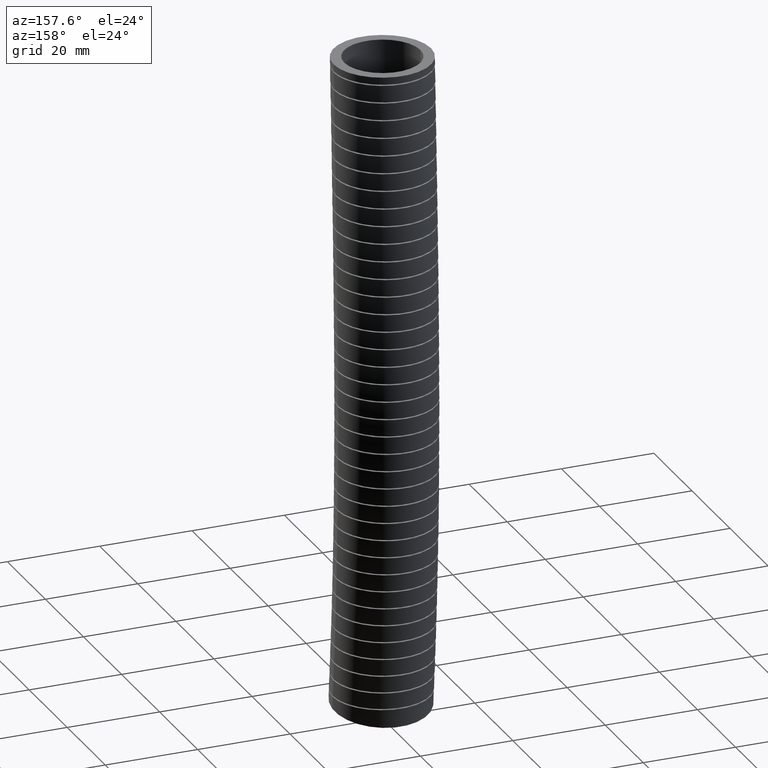
[diagram: clean part render]
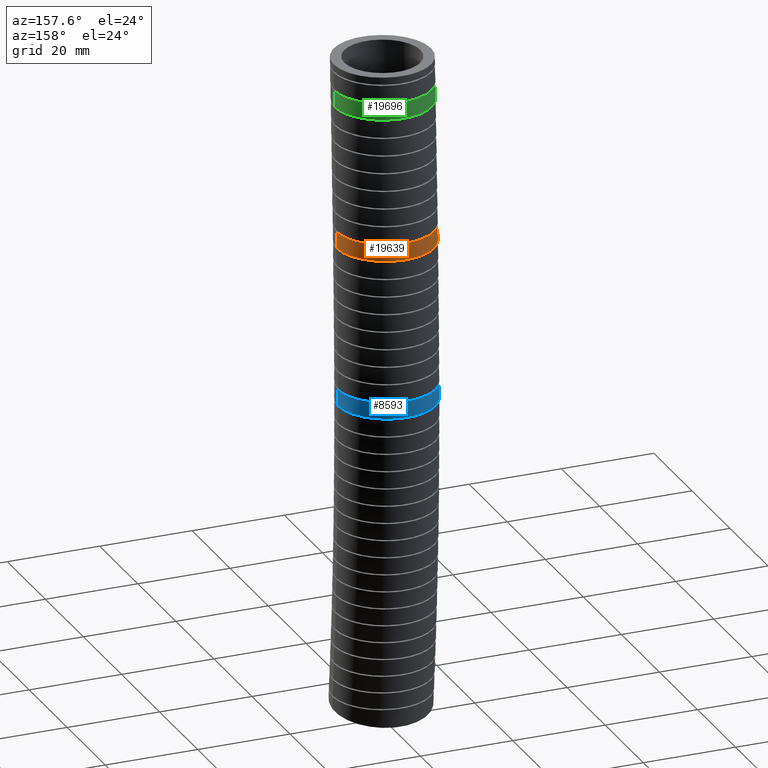
[diagram: same view with three faces highlighted in distinct colors, each labeled with its STEP entity id]
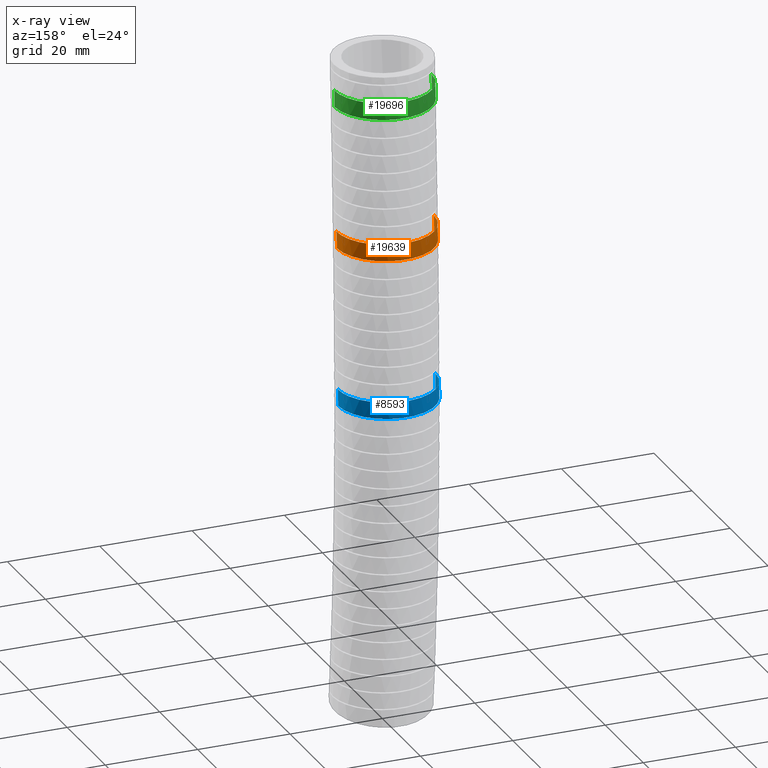
[diagram: x-ray of the same camera — body ghosted, the three highlighted faces saturated]
A machine part, auxiliary view with three faces highlighted in distinct colors.
The next image is the same camera in x-ray (body ghosted, the three faces saturated) — at least one of them is partly hidden behind the body in this view.
Their STEP definitions:

[orange] entity #19639 — the highlighted face is a freeform B-spline surface patch.
#127 = ORIENTED_EDGE ( 'NONE', *, *, #702, .F. ) ;
#128 = EDGE_LOOP ( 'NONE', ( #127, #15384, #15188, #19652 ) ) ;
#677 = VERTEX_POINT ( 'NONE', #9962 ) ;
#699 = VERTEX_POINT ( 'NONE', #10130 ) ;
#702 = EDGE_CURVE ( 'NONE', #706, #703, #10273, .T. ) ;
#703 = VERTEX_POINT ( 'NONE', #10271 ) ;
#706 = VERTEX_POINT ( 'NONE', #10300 ) ;
#707 = EDGE_CURVE ( 'NONE', #677, #699, #10296, .T. ) ;
#5275 = FACE_OUTER_BOUND ( 'NONE', #128, .T. ) ;
#5317 = CARTESIAN_POINT ( 'NONE',  ( 0.4150000000000000400, -0.7627651118616902700, -4.486822042548080700 ) ) ;
#5318 = CARTESIAN_POINT ( 'NONE',  ( 0.4150000000000000400, -0.7092540105308221500, -2.690209918970475100 ) ) ;
#5319 = CARTESIAN_POINT ( 'NONE',  ( 0.4150000000000000900, -0.7836011148550242600, -1.033763039210906500 ) ) ;
#5320 = CARTESIAN_POINT ( 'NONE',  ( 0.4150000000000000900, -0.8300000000000001800, 0.0000000000000000000 ) ) ;
#5321 = CARTESIAN_POINT ( 'NONE',  ( 0.4150000000000000400, -0.03000000000000001600, -5.569999999999998500 ) ) ;
#5323 = CARTESIAN_POINT ( 'NONE',  ( 0.4150000000000000900, -0.01243844818931303500, -5.380037381098891700 ) ) ;
#5324 = CARTESIAN_POINT ( 'NONE',  ( 0.4150000000000000900, 0.06281132015026588700, -4.566063580857106200 ) ) ;
#5325 = CARTESIAN_POINT ( 'NONE',  ( 0.4149999999999999200, 0.1218071073635319700, -2.711443563840852700 ) ) ;
#5326 = CARTESIAN_POINT ( 'NONE',  ( 0.4150000000000000900, 0.04680663936954134600, -1.041922460934817000 ) ) ;
#5327 = CARTESIAN_POINT ( 'NONE',  ( 0.4150000000000000900, 0.0000000000000000000, 0.0000000000000000000 ) ) ;
#5334 =( BOUNDED_SURFACE ( )  B_SPLINE_SURFACE ( 3, 3, ( 
 ( #5327, #5326, #5325, #5324, #5323, #5321 ),
 ( #5320, #5319, #5318, #5317, #5368, #5367 ),
 ( #5366, #5365, #5364, #5363, #5362, #5361 ),
 ( #5360, #5359, #5358, #5357, #5356, #5355 ),
 ( #5354, #5353, #5352, #5351, #5350, #5349 ),
 ( #5348, #5347, #5346, #5345, #5344, #5343 ),
 ( #5342, #5341, #5340, #5339, #5338, #5337 ) ),
 .UNSPECIFIED., .F., .F., .F. ) 
 B_SPLINE_SURFACE_WITH_KNOTS ( ( 4, 3, 4 ),
 ( 4, 1, 1, 4 ),
 ( 0.0000000000000000000, 0.5000000000000000000, 1.000000000000000000 ),
 ( 0.0000000000000000000, 0.5600000000000000500, 0.8973141982067990300, 1.000000000000000000 ),
 .UNSPECIFIED. ) 
 GEOMETRIC_REPRESENTATION_ITEM ( )  RATIONAL_B_SPLINE_SURFACE ( (
 ( 1.000000000000000000, 1.000000000000000000, 1.000000000000000000, 1.000000000000000000, 1.000000000000000000, 1.000000000000000000),
 ( 0.3333333333333333100, 0.3333333333333333100, 0.3333333333333333100, 0.3333333333333333100, 0.3333333333333332600, 0.3333333333333333100),
 ( 0.3333333333333333100, 0.3333333333333333100, 0.3333333333333333100, 0.3333333333333333100, 0.3333333333333332600, 0.3333333333333333100),
 ( 1.000000000000000000, 1.000000000000000000, 1.000000000000000000, 1.000000000000000000, 1.000000000000000000, 1.000000000000000000),
 ( 0.3333333333333333100, 0.3333333333333333100, 0.3333333333333333100, 0.3333333333333333100, 0.3333333333333332600, 0.3333333333333333100),
 ( 0.3333333333333333100, 0.3333333333333333100, 0.3333333333333333100, 0.3333333333333333100, 0.3333333333333332600, 0.3333333333333333100),
 ( 1.000000000000000000, 1.000000000000000000, 1.000000000000000000, 1.000000000000000000, 1.000000000000000000, 1.000000000000000000) ) ) 
 REPRESENTATION_ITEM ( '' )  SURFACE ( )  );
#5337 = CARTESIAN_POINT ( 'NONE',  ( 0.4150000000000000400, -0.03000000000000001600, -5.569999999999998500 ) ) ;
#5338 = CARTESIAN_POINT ( 'NONE',  ( 0.4150000000000000900, -0.01243844818931303500, -5.380037381098891700 ) ) ;
#5339 = CARTESIAN_POINT ( 'NONE',  ( 0.4150000000000000900, 0.06281132015026588700, -4.566063580857106200 ) ) ;
#5340 = CARTESIAN_POINT ( 'NONE',  ( 0.4149999999999999200, 0.1218071073635319700, -2.711443563840852700 ) ) ;
#5341 = CARTESIAN_POINT ( 'NONE',  ( 0.4150000000000000900, 0.04680663936954134600, -1.041922460934817000 ) ) ;
#5342 = CARTESIAN_POINT ( 'NONE',  ( 0.4150000000000000900, 0.0000000000000000000, 0.0000000000000000000 ) ) ;
#5343 = CARTESIAN_POINT ( 'NONE',  ( 0.4150000000000000400, 0.7922141346493595200, -5.683419208173947200 ) ) ;
#5344 = CARTESIAN_POINT ( 'NONE',  ( 0.4150000000000002000, 0.8104118928973711400, -5.486989566509566700 ) ) ;
#5345 = CARTESIAN_POINT ( 'NONE',  ( 0.4150000000000000400, 0.8883877521622221000, -4.645305119166129900 ) ) ;
#5346 = CARTESIAN_POINT ( 'NONE',  ( 0.4150000000000000400, 0.9528682252578860600, -2.732677208711230800 ) ) ;
#5347 = CARTESIAN_POINT ( 'NONE',  ( 0.4150000000000000900, 0.8772143935941071300, -1.050081882658727000 ) ) ;
#5348 = CARTESIAN_POINT ( 'NONE',  ( 0.4150000000000000900, 0.8300000000000001800, 0.0000000000000000000 ) ) ;
#5349 = CARTESIAN_POINT ( 'NONE',  ( -0.4149999999999999200, 0.7922141346493595200, -5.683419208173947200 ) ) ;
#5350 = CARTESIAN_POINT ( 'NONE',  ( -0.4150000000000000400, 0.8104118928973711400, -5.486989566509566700 ) ) ;
#5351 = CARTESIAN_POINT ( 'NONE',  ( -0.4149999999999999200, 0.8883877521622221000, -4.645305119166129900 ) ) ;
#5352 = CARTESIAN_POINT ( 'NONE',  ( -0.4149999999999999200, 0.9528682252578860600, -2.732677208711230800 ) ) ;
#5353 = CARTESIAN_POINT ( 'NONE',  ( -0.4149999999999999200, 0.8772143935941071300, -1.050081882658727000 ) ) ;
#5354 = CARTESIAN_POINT ( 'NONE',  ( -0.4150000000000000400, 0.8300000000000001800, 0.0000000000000000000 ) ) ;
#5355 = CARTESIAN_POINT ( 'NONE',  ( -0.4150000000000000400, -0.02999999999999996800, -5.569999999999998500 ) ) ;
#5356 = CARTESIAN_POINT ( 'NONE',  ( -0.4150000000000000900, -0.01243844818931298000, -5.380037381098891700 ) ) ;
#5357 = CARTESIAN_POINT ( 'NONE',  ( -0.4150000000000000900, 0.06281132015026594200, -4.566063580857106200 ) ) ;
#5358 = CARTESIAN_POINT ( 'NONE',  ( -0.4149999999999999200, 0.1218071073635320100, -2.711443563840852700 ) ) ;
#5359 = CARTESIAN_POINT ( 'NONE',  ( -0.4150000000000000900, 0.04680663936954139500, -1.041922460934817000 ) ) ;
#5360 = CARTESIAN_POINT ( 'NONE',  ( -0.4150000000000000900, 5.082284216461516900E-017, 0.0000000000000000000 ) ) ;
#5361 = CARTESIAN_POINT ( 'NONE',  ( -0.4150000000000000900, -0.8522141346493592500, -5.456580791826050700 ) ) ;
#5362 = CARTESIAN_POINT ( 'NONE',  ( -0.4150000000000002000, -0.8352887892759974800, -5.273085195688222100 ) ) ;
#5363 = CARTESIAN_POINT ( 'NONE',  ( -0.4150000000000000900, -0.7627651118616902700, -4.486822042548080700 ) ) ;
#5364 = CARTESIAN_POINT ( 'NONE',  ( -0.4150000000000000400, -0.7092540105308221500, -2.690209918970475100 ) ) ;
#5365 = CARTESIAN_POINT ( 'NONE',  ( -0.4150000000000000900, -0.7836011148550242600, -1.033763039210906500 ) ) ;
#5366 = CARTESIAN_POINT ( 'NONE',  ( -0.4150000000000000900, -0.8300000000000001800, 0.0000000000000000000 ) ) ;
#5367 = CARTESIAN_POINT ( 'NONE',  ( 0.4150000000000000400, -0.8522141346493592500, -5.456580791826050700 ) ) ;
#5368 = CARTESIAN_POINT ( 'NONE',  ( 0.4150000000000002000, -0.8352887892759974800, -5.273085195688222100 ) ) ;
#5631 = CARTESIAN_POINT ( 'NONE',  ( -0.2530480296697572600, 0.3930098631821943900, -1.558745690570982400 ) ) ;
#5632 = CARTESIAN_POINT ( 'NONE',  ( -0.2420183854522029200, 0.4012025832483722100, -1.558745690570981100 ) ) ;
#5633 = CARTESIAN_POINT ( 'NONE',  ( -0.2079953799857171800, 0.4239492426593599600, -1.558745690570980900 ) ) ;
#5634 = CARTESIAN_POINT ( 'NONE',  ( -0.1841409775019460200, 0.4366920484936032700, -1.558745690570980900 ) ) ;
#5635 = CARTESIAN_POINT ( 'NONE',  ( -0.1466424309258130600, 0.4522598473942761000, -1.558745690570981300 ) ) ;
#5636 = CARTESIAN_POINT ( 'NONE',  ( -0.1338547111090290000, 0.4568538169216500600, -1.558745690570982700 ) ) ;
#5637 = CARTESIAN_POINT ( 'NONE',  ( -0.1076844076745166300, 0.4648130424854946000, -1.558745690570982700 ) ) ;
#5638 = CARTESIAN_POINT ( 'NONE',  ( -0.09441587613805650600, 0.4681382022034298900, -1.558745690570981300 ) ) ;
#5639 = CARTESIAN_POINT ( 'NONE',  ( -0.05452458177354133100, 0.4760878549364622700, -1.558745690570981100 ) ) ;
#5640 = CARTESIAN_POINT ( 'NONE',  ( -0.02763124873732881000, 0.4787633537436413700, -1.558745690570982200 ) ) ;
#5641 = CARTESIAN_POINT ( 'NONE',  ( 0.01316132861774301100, 0.4788062237595002700, -1.558745690570982000 ) ) ;
#5642 = CARTESIAN_POINT ( 'NONE',  ( 0.02690503160815264900, 0.4781431039985693000, -1.558745690570981100 ) ) ;
#5643 = CARTESIAN_POINT ( 'NONE',  ( 0.05401535565871507700, 0.4754877283855035200, -1.558745690570981100 ) ) ;
#5644 = CARTESIAN_POINT ( 'NONE',  ( 0.06742087615956440800, 0.4735027468085092300, -1.558745690570981300 ) ) ;
#5645 = CARTESIAN_POINT ( 'NONE',  ( 0.1071986118086044000, 0.4656202789456790300, -1.558745690570981300 ) ) ;
#5646 = CARTESIAN_POINT ( 'NONE',  ( 0.1331363142419370300, 0.4578142147985411700, -1.558745690570981100 ) ) ;
#5647 = CARTESIAN_POINT ( 'NONE',  ( 0.1838011139505479600, 0.4368845569489011600, -1.558745690570981100 ) ) ;
#5648 = CARTESIAN_POINT ( 'NONE',  ( 0.2076944669633723800, 0.4241039006592391400, -1.558745690570980000 ) ) ;
#5649 = CARTESIAN_POINT ( 'NONE',  ( 0.2414360814785000100, 0.4016144037911879000, -1.558745690570980400 ) ) ;
#5650 = CARTESIAN_POINT ( 'NONE',  ( 0.2523326078176387800, 0.3935600190301745100, -1.558745690570981600 ) ) ;
#5651 = CARTESIAN_POINT ( 'NONE',  ( 0.2734084412545565400, 0.3763102430458227200, -1.558745690570982200 ) ) ;
#5652 = CARTESIAN_POINT ( 'NONE',  ( 0.2836137943189495100, 0.3670791682988576700, -1.558745690570980400 ) ) ;
#5653 = CARTESIAN_POINT ( 'NONE',  ( 0.3124862738769199600, 0.3382524385800725900, -1.558745690570981300 ) ) ;
#5654 = CARTESIAN_POINT ( 'NONE',  ( 0.3296487723175474700, 0.3173742912554553500, -1.558745690570980900 ) ) ;
#5655 = CARTESIAN_POINT ( 'NONE',  ( 0.3522929406101922300, 0.2835897846059329300, -1.558745690570980400 ) ) ;
#5656 = CARTESIAN_POINT ( 'NONE',  ( 0.3593417700886814600, 0.2718743705796292700, -1.558745690570980900 ) ) ;
#5657 = CARTESIAN_POINT ( 'NONE',  ( 0.3722644896321220500, 0.2477587841385151800, -1.558745690570981100 ) ) ;
#5658 = CARTESIAN_POINT ( 'NONE',  ( 0.3780806080155281200, 0.2354763999878228500, -1.558745690570982400 ) ) ;
#5659 = CARTESIAN_POINT ( 'NONE',  ( 0.3936540415104261000, 0.1979766384407226600, -1.558745690570982400 ) ) ;
#5660 = CARTESIAN_POINT ( 'NONE',  ( 0.4015541706315150500, 0.1721128252505605700, -1.558745690570982700 ) ) ;
#5661 = CARTESIAN_POINT ( 'NONE',  ( 0.4095936908385555100, 0.1319907139541683400, -1.558745690570982200 ) ) ;
#5662 = CARTESIAN_POINT ( 'NONE',  ( 0.4116257368884618800, 0.1183970458522912200, -1.558745690570980200 ) ) ;
#5663 = CARTESIAN_POINT ( 'NONE',  ( 0.4143224466391948700, 0.09120927082526174300, -1.558745690570980400 ) ) ;
#5664 = CARTESIAN_POINT ( 'NONE',  ( 0.4150000000000000900, 0.07755948595522385600, -1.558745690378915900 ) ) ;
#5665 = CARTESIAN_POINT ( 'NONE',  ( 0.4150000000000000900, 0.06385324110268690600, -1.558745690378915900 ) ) ;
#5666 = B_SPLINE_CURVE_WITH_KNOTS ( 'NONE', 3,
 ( #5665, #5664, #5663, #5662, #5661, #5660, #5659, #5658, #5657, #5656, #5655, #5654, #5653, #5652, #5651, #5650, #5649, #5648, #5647, #5646, #5645, #5644, #5643, #5642, #5641, #5640, #5639, #5638, #5637, #5636, #5635, #5634, #5633, #5632, #5631, #5709, #5708, #5707, #5706, #5705, #5704, #5703, #5702, #5701, #5700, #5699, #5698, #5697, #5696 ),
 .UNSPECIFIED., .F., .F.,
 ( 4, 2, 2, 2, 2, 2, 2, 2, 2, 2, 2, 2, 2, 2, 2, 2, 2, 2, 1, 2, 2, 2, 2, 2, 4 ),
 ( 0.0000000000000000000, 0.001040808548537697300, 0.002081617097075394600, 0.004163234194150791000, 0.005204042742688487800, 0.006244851291226185600, 0.008326468388301581900, 0.009367276936839280500, 0.01040808548537697600, 0.01248970258245237300, 0.01457131967952776800, 0.01561212822806546500, 0.01665293677660316400, 0.01873455387367856100, 0.01977536242221625600, 0.02081617097075395100, 0.02289778806782934500, 0.02393859661636704400, 0.02497940516490474200, 0.02602021371344244100, 0.02706102226198013600, 0.02914263935905553300, 0.03018344790759323200, 0.03122425645613092700, 0.03330587355320632800 ),
 .UNSPECIFIED. ) ;
#5696 = CARTESIAN_POINT ( 'NONE',  ( -0.4150000000000000900, 0.06385324111537978000, -1.558745690570981600 ) ) ;
#5697 = CARTESIAN_POINT ( 'NONE',  ( -0.4150000000000000400, 0.09103404013532480400, -1.558745690570981300 ) ) ;
#5698 = CARTESIAN_POINT ( 'NONE',  ( -0.4123543557392044800, 0.1179288235226030600, -1.558745690570981100 ) ) ;
#5699 = CARTESIAN_POINT ( 'NONE',  ( -0.4044404088867445400, 0.1578444601202371500, -1.558745690570982000 ) ) ;
#5700 = CARTESIAN_POINT ( 'NONE',  ( -0.4011218134241089600, 0.1711363851670459100, -1.558745690570982400 ) ) ;
#5701 = CARTESIAN_POINT ( 'NONE',  ( -0.3931921010271234900, 0.1972941505919999200, -1.558745690570982400 ) ) ;
#5702 = CARTESIAN_POINT ( 'NONE',  ( -0.3886123362093592000, 0.2100797063785178600, -1.558745690570981100 ) ) ;
#5703 = CARTESIAN_POINT ( 'NONE',  ( -0.3730830397548043400, 0.2475824976204930900, -1.558745690570981300 ) ) ;
#5704 = CARTESIAN_POINT ( 'NONE',  ( -0.3603605524434012100, 0.2714539884862736100, -1.558745690570982900 ) ) ;
#5705 = CARTESIAN_POINT ( 'NONE',  ( -0.3376260681695171800, 0.3055197233466000500, -1.558745690570982400 ) ) ;
#5706 = CARTESIAN_POINT ( 'NONE',  ( -0.3294499711217612200, 0.3165447876002900300, -1.558745690570982200 ) ) ;
#5707 = CARTESIAN_POINT ( 'NONE',  ( -0.3122300736977493600, 0.3375308369935001200, -1.558745690570982700 ) ) ;
#5708 = CARTESIAN_POINT ( 'NONE',  ( -0.2940636023942566100, 0.3575757523175059900, -1.558745690570981100 ) ) ;
#5709 = CARTESIAN_POINT ( 'NONE',  ( -0.2740297446776663900, 0.3757640128025892000, -1.558745690570982200 ) ) ;
#9962 = CARTESIAN_POINT ( 'NONE',  ( 0.4150000000000000900, 0.05908527017593824500, -1.418832748670765700 ) ) ;
#10130 = CARTESIAN_POINT ( 'NONE',  ( 0.4150000000000000900, 0.06385324110268690600, -1.558745690378915900 ) ) ;
#10265 = CARTESIAN_POINT ( 'NONE',  ( -0.4150000000000000900, 0.06385324111537978000, -1.558745690570981600 ) ) ;
#10266 = CARTESIAN_POINT ( 'NONE',  ( -0.4149999999999999200, 0.06231226543439481700, -1.512110062923618200 ) ) ;
#10267 = CARTESIAN_POINT ( 'NONE',  ( -0.4150000000000000400, 0.06072145016293117200, -1.465472353379295000 ) ) ;
#10268 = CARTESIAN_POINT ( 'NONE',  ( -0.4150000000000000900, 0.05908527018941434800, -1.418832748862834900 ) ) ;
#10271 = CARTESIAN_POINT ( 'NONE',  ( -0.4150000000000000900, 0.06385324111537978000, -1.558745690570981600 ) ) ;
#10273 = B_SPLINE_CURVE_WITH_KNOTS ( 'NONE', 3,
 ( #10268, #10267, #10266, #10265 ),
 .UNSPECIFIED., .F., .F.,
 ( 4, 4 ),
 ( 0.2542272988699750300, 0.2793049196998993500 ),
 .UNSPECIFIED. ) ;
#10296 = B_SPLINE_CURVE_WITH_KNOTS ( 'NONE', 3,
 ( #10350, #10349, #10348, #10347 ),
 .UNSPECIFIED., .F., .F.,
 ( 4, 4 ),
 ( 0.2542272988355082600, 0.2793049196654349700 ),
 .UNSPECIFIED. ) ;
#10300 = CARTESIAN_POINT ( 'NONE',  ( -0.4150000000000000900, 0.05908527018941434800, -1.418832748862834900 ) ) ;
#10347 = CARTESIAN_POINT ( 'NONE',  ( 0.4150000000000000900, 0.06385324110268690600, -1.558745690378915900 ) ) ;
#10348 = CARTESIAN_POINT ( 'NONE',  ( 0.4150000000000000900, 0.06231226542790428000, -1.512110062731332200 ) ) ;
#10349 = CARTESIAN_POINT ( 'NONE',  ( 0.4150000000000000900, 0.06072145015630964200, -1.465472353186999300 ) ) ;
#10350 = CARTESIAN_POINT ( 'NONE',  ( 0.4150000000000000900, 0.05908527017593824500, -1.418832748670765700 ) ) ;
#15188 = ORIENTED_EDGE ( 'NONE', *, *, #707, .T. ) ;
#15226 = EDGE_CURVE ( 'NONE', #706, #677, #15950, .T. ) ;
#15384 = ORIENTED_EDGE ( 'NONE', *, *, #15226, .T. ) ;
#15917 = CARTESIAN_POINT ( 'NONE',  ( 0.2075406508687024100, 0.4186845661983060700, -1.418832748862834300 ) ) ;
#15918 = CARTESIAN_POINT ( 'NONE',  ( 0.1834488923573311100, 0.4315491679798713100, -1.418832748862834100 ) ) ;
#15919 = CARTESIAN_POINT ( 'NONE',  ( 0.1711728334796850900, 0.4373422404948635900, -1.418832748862833800 ) ) ;
#15920 = CARTESIAN_POINT ( 'NONE',  ( 0.1336734067975987000, 0.4528573395961156800, -1.418832748862833600 ) ) ;
#15921 = CARTESIAN_POINT ( 'NONE',  ( 0.1077852262346627500, 0.4607331246419718000, -1.418832748862834900 ) ) ;
#15922 = CARTESIAN_POINT ( 'NONE',  ( 0.06757918351784343600, 0.4687317209484308000, -1.418832748862834900 ) ) ;
#15923 = CARTESIAN_POINT ( 'NONE',  ( 0.05401970958160927400, 0.4707356533903930800, -1.418832748862834500 ) ) ;
#15924 = CARTESIAN_POINT ( 'NONE',  ( 0.02701520612460219300, 0.4733845586806245100, -1.418832748862834500 ) ) ;
#15925 = CARTESIAN_POINT ( 'NONE',  ( -3.141919472672733100E-007, 0.4747009195132181300, -1.418832748862831600 ) ) ;
#15926 = CARTESIAN_POINT ( 'NONE',  ( -0.02703760670074020800, 0.4733838244153256200, -1.418832748862834100 ) ) ;
#15927 = CARTESIAN_POINT ( 'NONE',  ( -0.05408596979859525000, 0.4707276860048825200, -1.418832748862834100 ) ) ;
#15928 = CARTESIAN_POINT ( 'NONE',  ( -0.06769021407858082100, 0.4687123141075830700, -1.418832748862832700 ) ) ;
#15929 = CARTESIAN_POINT ( 'NONE',  ( -0.1077994571987883600, 0.4607249065735786700, -1.418832748862832700 ) ) ;
#15930 = CARTESIAN_POINT ( 'NONE',  ( -0.1336714596217841200, 0.4528597067144449800, -1.418832748862834500 ) ) ;
#15931 = CARTESIAN_POINT ( 'NONE',  ( -0.1837154728501669000, 0.4321512572490561200, -1.418832748862834900 ) ) ;
#15932 = CARTESIAN_POINT ( 'NONE',  ( -0.2080895273361324500, 0.4191293959363949800, -1.418832748862834900 ) ) ;
#15933 = CARTESIAN_POINT ( 'NONE',  ( -0.2531615865203227800, 0.3890041836772727400, -1.418832748862834500 ) ) ;
#15934 = CARTESIAN_POINT ( 'NONE',  ( -0.2740667689532872400, 0.3718678634584195500, -1.418832748862833800 ) ) ;
#15935 = CARTESIAN_POINT ( 'NONE',  ( -0.3029482121341942100, 0.3430145893553107100, -1.418832748862834100 ) ) ;
#15936 = CARTESIAN_POINT ( 'NONE',  ( -0.3121937266000017800, 0.3328183542882893800, -1.418832748862834500 ) ) ;
#15937 = CARTESIAN_POINT ( 'NONE',  ( -0.3294617959961215800, 0.3117746700324480200, -1.418832748862834300 ) ) ;
#15938 = CARTESIAN_POINT ( 'NONE',  ( -0.3375282819760183100, 0.3008914116068094900, -1.418832748862835600 ) ) ;
#15939 = CARTESIAN_POINT ( 'NONE',  ( -0.3600603646152695200, 0.2671798479957746600, -1.418832748862835400 ) ) ;
#15940 = CARTESIAN_POINT ( 'NONE',  ( -0.3728936815753253800, 0.2432551594121166200, -1.418832748862835200 ) ) ;
#15941 = CARTESIAN_POINT ( 'NONE',  ( -0.3938679471605016100, 0.1926503495636997500, -1.418832748862835200 ) ) ;
#15942 = CARTESIAN_POINT ( 'NONE',  ( -0.4017049477336311900, 0.1667283083353255900, -1.418832748862836100 ) ) ;
#15943 = CARTESIAN_POINT ( 'NONE',  ( -0.4096353499487643300, 0.1269508873472916200, -1.418832748862835600 ) ) ;
#15944 = CARTESIAN_POINT ( 'NONE',  ( -0.4116365967719843900, 0.1135415872693664600, -1.418832748862834900 ) ) ;
#15945 = CARTESIAN_POINT ( 'NONE',  ( -0.4143231988795148500, 0.08641531409861176500, -1.418832748862834900 ) ) ;
#15946 = CARTESIAN_POINT ( 'NONE',  ( -0.4150000000000000900, 0.07267675005476742500, -1.418832748862834900 ) ) ;
#15947 = CARTESIAN_POINT ( 'NONE',  ( -0.4150000000000000900, 0.05908527018941434800, -1.418832748862834900 ) ) ;
#15950 = B_SPLINE_CURVE_WITH_KNOTS ( 'NONE', 3,
 ( #15947, #15946, #15945, #15944, #15943, #15942, #15941, #15940, #15939, #15938, #15937, #15936, #15935, #15934, #15933, #15932, #15931, #15930, #15929, #15928, #15927, #15926, #15925, #15924, #15923, #15922, #15921, #15920, #15919, #15918, #15917, #15992, #15991, #15990, #15989, #15988, #15987, #15986, #15985, #15984, #15983, #15982, #15981, #15980, #15979, #15978, #15977, #15976 ),
 .UNSPECIFIED., .F., .F.,
 ( 4, 2, 2, 2, 2, 2, 2, 2, 2, 2, 2, 1, 2, 2, 2, 2, 2, 2, 2, 2, 2, 2, 1, 2, 4 ),
 ( 0.03330652396882859100, 0.03434741441095347900, 0.03538830485307837400, 0.03747008573732815700, 0.03955186662157794000, 0.04059275706370282800, 0.04163364750582772300, 0.04371542839007749900, 0.04579720927432727500, 0.04787899015857705100, 0.04891988060070193900, 0.04996077104282682600, 0.05100166148495172100, 0.05204255192707660200, 0.05412433281132637800, 0.05516522325345127300, 0.05620611369557616100, 0.05828789457982593000, 0.05932878502195082500, 0.06036967546407570600, 0.06245145634832548200, 0.06349234679045037700, 0.06453323723257525800, 0.06557412767470016700, 0.06661501811682504800 ),
 .UNSPECIFIED. ) ;
#15976 = CARTESIAN_POINT ( 'NONE',  ( 0.4150000000000000900, 0.05908527017593824500, -1.418832748670765700 ) ) ;
#15977 = CARTESIAN_POINT ( 'NONE',  ( 0.4150000000000001500, 0.07279259193946806300, -1.418832748670765500 ) ) ;
#15978 = CARTESIAN_POINT ( 'NONE',  ( 0.4143161010532069300, 0.08650862150663417300, -1.418832748862835400 ) ) ;
#15979 = CARTESIAN_POINT ( 'NONE',  ( 0.4116308276513374600, 0.1135780917256102200, -1.418832748862835400 ) ) ;
#15980 = CARTESIAN_POINT ( 'NONE',  ( 0.4076329018602266000, 0.1403637002892749500, -1.418832748862831800 ) ) ;
#15981 = CARTESIAN_POINT ( 'NONE',  ( 0.4010594200870052900, 0.1665923437413652800, -1.418832748862834500 ) ) ;
#15982 = CARTESIAN_POINT ( 'NONE',  ( 0.3931857185142784200, 0.1925398140911316600, -1.418832748862834500 ) ) ;
#15983 = CARTESIAN_POINT ( 'NONE',  ( 0.3885816068672299800, 0.2054139110569749000, -1.418832748862836300 ) ) ;
#15984 = CARTESIAN_POINT ( 'NONE',  ( 0.3728565572315900600, 0.2433263059649695700, -1.418832748862836500 ) ) ;
#15985 = CARTESIAN_POINT ( 'NONE',  ( 0.3600601825297664000, 0.2671819355304587700, -1.418832748862834500 ) ) ;
#15986 = CARTESIAN_POINT ( 'NONE',  ( 0.3375154701078675300, 0.3009096718580006000, -1.418832748862834900 ) ) ;
#15987 = CARTESIAN_POINT ( 'NONE',  ( 0.3294381202342990300, 0.3118071245717364300, -1.418832748862834300 ) ) ;
#15988 = CARTESIAN_POINT ( 'NONE',  ( 0.3121289750098797400, 0.3328936430417261400, -1.418832748862833800 ) ) ;
#15989 = CARTESIAN_POINT ( 'NONE',  ( 0.3028932180250721300, 0.3430720357373032200, -1.418832748862833600 ) ) ;
#15990 = CARTESIAN_POINT ( 'NONE',  ( 0.2740615686171909400, 0.3718680318528550500, -1.418832748862834300 ) ) ;
#15991 = CARTESIAN_POINT ( 'NONE',  ( 0.2531642605538143600, 0.3890053142080643300, -1.418832748862835600 ) ) ;
#15992 = CARTESIAN_POINT ( 'NONE',  ( 0.2193099212241275400, 0.4116284597875371500, -1.418832748862835400 ) ) ;
#19639 = ADVANCED_FACE ( 'NONE', ( #5275 ), #5334, .T. ) ;
#19652 = ORIENTED_EDGE ( 'NONE', *, *, #19656, .T. ) ;
#19656 = EDGE_CURVE ( 'NONE', #699, #703, #5666, .T. ) ;

[blue] entity #8593 — the highlighted face is a freeform B-spline surface patch.
#3813 = CARTESIAN_POINT ( 'NONE',  ( 0.4150000000000000400, 0.09052082311358492000, -2.908435455503748400 ) ) ;
#3915 = CARTESIAN_POINT ( 'NONE',  ( 0.4150000000000000400, 0.09052082311358492000, -2.908435455503748400 ) ) ;
#3916 = CARTESIAN_POINT ( 'NONE',  ( 0.4150000000000000900, 0.09035862220003072800, -2.861773406531587000 ) ) ;
#3917 = CARTESIAN_POINT ( 'NONE',  ( 0.4150000000000000900, 0.09010305223017404900, -2.815107457351757200 ) ) ;
#3918 = CARTESIAN_POINT ( 'NONE',  ( 0.4150000000000000400, 0.08975861235376092500, -2.768437795902565700 ) ) ;
#3923 = B_SPLINE_CURVE_WITH_KNOTS ( 'NONE', 3,
 ( #3918, #3917, #3916, #3915 ),
 .UNSPECIFIED., .F., .F.,
 ( 4, 4 ),
 ( 0.4962417475596580500, 0.5213646088957214500 ),
 .UNSPECIFIED. ) ;
#4028 = CARTESIAN_POINT ( 'NONE',  ( -0.4150000000000000900, 0.09052082311492018500, -2.908435455695810300 ) ) ;
#4029 = B_SPLINE_CURVE_WITH_KNOTS ( 'NONE', 3,
 ( #4045, #4044, #4043, #4042 ),
 .UNSPECIFIED., .F., .F.,
 ( 4, 4 ),
 ( 0.4962417475940834600, 0.5213646089301906500 ),
 .UNSPECIFIED. ) ;
#4042 = CARTESIAN_POINT ( 'NONE',  ( -0.4150000000000000900, 0.09052082311492018500, -2.908435455695810300 ) ) ;
#4043 = CARTESIAN_POINT ( 'NONE',  ( -0.4149999999999999200, 0.09035862220095430800, -2.861773406723580500 ) ) ;
#4044 = CARTESIAN_POINT ( 'NONE',  ( -0.4150000000000000400, 0.09010305223134706900, -2.815107457543680500 ) ) ;
#4045 = CARTESIAN_POINT ( 'NONE',  ( -0.4149999999999999200, 0.08975861235659271500, -2.768437796094407800 ) ) ;
#4046 = CARTESIAN_POINT ( 'NONE',  ( -0.4149999999999999200, 0.08975861235659271500, -2.768437796094407800 ) ) ;
#4047 = CARTESIAN_POINT ( 'NONE',  ( 0.4150000000000000400, 0.08975861235376092500, -2.768437795902565700 ) ) ;
#8454 = EDGE_LOOP ( 'NONE', ( #8456, #10190, #9763, #9740 ) ) ;
#8456 = ORIENTED_EDGE ( 'NONE', *, *, #16493, .F. ) ;
#8593 = ADVANCED_FACE ( 'NONE', ( #14319 ), #14345, .T. ) ;
#9740 = ORIENTED_EDGE ( 'NONE', *, *, #9748, .T. ) ;
#9748 = EDGE_CURVE ( 'NONE', #16486, #16495, #14717, .T. ) ;
#9763 = ORIENTED_EDGE ( 'NONE', *, *, #16487, .T. ) ;
#10190 = ORIENTED_EDGE ( 'NONE', *, *, #10272, .T. ) ;
#10272 = EDGE_CURVE ( 'NONE', #16497, #16496, #14732, .T. ) ;
#14319 = FACE_OUTER_BOUND ( 'NONE', #8454, .T. ) ;
#14334 = CARTESIAN_POINT ( 'NONE',  ( 0.4150000000000000900, -0.7836011148550242600, -1.033763039210906500 ) ) ;
#14335 = CARTESIAN_POINT ( 'NONE',  ( 0.4150000000000000900, -0.8300000000000001800, 0.0000000000000000000 ) ) ;
#14336 = CARTESIAN_POINT ( 'NONE',  ( 0.4150000000000000400, -0.03000000000000001600, -5.569999999999998500 ) ) ;
#14337 = CARTESIAN_POINT ( 'NONE',  ( 0.4150000000000000900, -0.01243844818931303500, -5.380037381098891700 ) ) ;
#14338 = CARTESIAN_POINT ( 'NONE',  ( 0.4150000000000000900, 0.06281132015026588700, -4.566063580857106200 ) ) ;
#14339 = CARTESIAN_POINT ( 'NONE',  ( 0.4149999999999999200, 0.1218071073635319700, -2.711443563840852700 ) ) ;
#14340 = CARTESIAN_POINT ( 'NONE',  ( 0.4150000000000000900, 0.04680663936954134600, -1.041922460934817000 ) ) ;
#14341 = CARTESIAN_POINT ( 'NONE',  ( 0.4150000000000000900, 0.0000000000000000000, 0.0000000000000000000 ) ) ;
#14345 =( BOUNDED_SURFACE ( )  B_SPLINE_SURFACE ( 3, 3, ( 
 ( #14341, #14340, #14339, #14338, #14337, #14336 ),
 ( #14335, #14334, #14380, #14379, #14378, #14377 ),
 ( #14376, #14375, #14374, #14373, #14372, #14371 ),
 ( #14370, #14369, #14368, #14367, #14366, #14365 ),
 ( #14364, #14363, #14362, #14361, #14360, #14359 ),
 ( #14358, #14357, #14356, #14355, #14354, #14353 ),
 ( #14352, #14351, #14350, #14349, #14348, #14347 ) ),
 .UNSPECIFIED., .F., .F., .F. ) 
 B_SPLINE_SURFACE_WITH_KNOTS ( ( 4, 3, 4 ),
 ( 4, 1, 1, 4 ),
 ( 0.0000000000000000000, 0.5000000000000000000, 1.000000000000000000 ),
 ( 0.0000000000000000000, 0.5600000000000000500, 0.8973141982067990300, 1.000000000000000000 ),
 .UNSPECIFIED. ) 
 GEOMETRIC_REPRESENTATION_ITEM ( )  RATIONAL_B_SPLINE_SURFACE ( (
 ( 1.000000000000000000, 1.000000000000000000, 1.000000000000000000, 1.000000000000000000, 1.000000000000000000, 1.000000000000000000),
 ( 0.3333333333333333100, 0.3333333333333333100, 0.3333333333333333100, 0.3333333333333333100, 0.3333333333333332600, 0.3333333333333333100),
 ( 0.3333333333333333100, 0.3333333333333333100, 0.3333333333333333100, 0.3333333333333333100, 0.3333333333333332600, 0.3333333333333333100),
 ( 1.000000000000000000, 1.000000000000000000, 1.000000000000000000, 1.000000000000000000, 1.000000000000000000, 1.000000000000000000),
 ( 0.3333333333333333100, 0.3333333333333333100, 0.3333333333333333100, 0.3333333333333333100, 0.3333333333333332600, 0.3333333333333333100),
 ( 0.3333333333333333100, 0.3333333333333333100, 0.3333333333333333100, 0.3333333333333333100, 0.3333333333333332600, 0.3333333333333333100),
 ( 1.000000000000000000, 1.000000000000000000, 1.000000000000000000, 1.000000000000000000, 1.000000000000000000, 1.000000000000000000) ) ) 
 REPRESENTATION_ITEM ( '' )  SURFACE ( )  );
#14347 = CARTESIAN_POINT ( 'NONE',  ( 0.4150000000000000400, -0.03000000000000001600, -5.569999999999998500 ) ) ;
#14348 = CARTESIAN_POINT ( 'NONE',  ( 0.4150000000000000900, -0.01243844818931303500, -5.380037381098891700 ) ) ;
#14349 = CARTESIAN_POINT ( 'NONE',  ( 0.4150000000000000900, 0.06281132015026588700, -4.566063580857106200 ) ) ;
#14350 = CARTESIAN_POINT ( 'NONE',  ( 0.4149999999999999200, 0.1218071073635319700, -2.711443563840852700 ) ) ;
#14351 = CARTESIAN_POINT ( 'NONE',  ( 0.4150000000000000900, 0.04680663936954134600, -1.041922460934817000 ) ) ;
#14352 = CARTESIAN_POINT ( 'NONE',  ( 0.4150000000000000900, 0.0000000000000000000, 0.0000000000000000000 ) ) ;
#14353 = CARTESIAN_POINT ( 'NONE',  ( 0.4150000000000000400, 0.7922141346493595200, -5.683419208173947200 ) ) ;
#14354 = CARTESIAN_POINT ( 'NONE',  ( 0.4150000000000002000, 0.8104118928973711400, -5.486989566509566700 ) ) ;
#14355 = CARTESIAN_POINT ( 'NONE',  ( 0.4150000000000000400, 0.8883877521622221000, -4.645305119166129900 ) ) ;
#14356 = CARTESIAN_POINT ( 'NONE',  ( 0.4150000000000000400, 0.9528682252578860600, -2.732677208711230800 ) ) ;
#14357 = CARTESIAN_POINT ( 'NONE',  ( 0.4150000000000000900, 0.8772143935941071300, -1.050081882658727000 ) ) ;
#14358 = CARTESIAN_POINT ( 'NONE',  ( 0.4150000000000000900, 0.8300000000000001800, 0.0000000000000000000 ) ) ;
#14359 = CARTESIAN_POINT ( 'NONE',  ( -0.4149999999999999200, 0.7922141346493595200, -5.683419208173947200 ) ) ;
#14360 = CARTESIAN_POINT ( 'NONE',  ( -0.4150000000000000400, 0.8104118928973711400, -5.486989566509566700 ) ) ;
#14361 = CARTESIAN_POINT ( 'NONE',  ( -0.4149999999999999200, 0.8883877521622221000, -4.645305119166129900 ) ) ;
#14362 = CARTESIAN_POINT ( 'NONE',  ( -0.4149999999999999200, 0.9528682252578860600, -2.732677208711230800 ) ) ;
#14363 = CARTESIAN_POINT ( 'NONE',  ( -0.4149999999999999200, 0.8772143935941071300, -1.050081882658727000 ) ) ;
#14364 = CARTESIAN_POINT ( 'NONE',  ( -0.4150000000000000400, 0.8300000000000001800, 0.0000000000000000000 ) ) ;
#14365 = CARTESIAN_POINT ( 'NONE',  ( -0.4150000000000000400, -0.02999999999999996800, -5.569999999999998500 ) ) ;
#14366 = CARTESIAN_POINT ( 'NONE',  ( -0.4150000000000000900, -0.01243844818931298000, -5.380037381098891700 ) ) ;
#14367 = CARTESIAN_POINT ( 'NONE',  ( -0.4150000000000000900, 0.06281132015026594200, -4.566063580857106200 ) ) ;
#14368 = CARTESIAN_POINT ( 'NONE',  ( -0.4149999999999999200, 0.1218071073635320100, -2.711443563840852700 ) ) ;
#14369 = CARTESIAN_POINT ( 'NONE',  ( -0.4150000000000000900, 0.04680663936954139500, -1.041922460934817000 ) ) ;
#14370 = CARTESIAN_POINT ( 'NONE',  ( -0.4150000000000000900, 5.082284216461516900E-017, 0.0000000000000000000 ) ) ;
#14371 = CARTESIAN_POINT ( 'NONE',  ( -0.4150000000000000900, -0.8522141346493592500, -5.456580791826050700 ) ) ;
#14372 = CARTESIAN_POINT ( 'NONE',  ( -0.4150000000000002000, -0.8352887892759974800, -5.273085195688222100 ) ) ;
#14373 = CARTESIAN_POINT ( 'NONE',  ( -0.4150000000000000900, -0.7627651118616902700, -4.486822042548080700 ) ) ;
#14374 = CARTESIAN_POINT ( 'NONE',  ( -0.4150000000000000400, -0.7092540105308221500, -2.690209918970475100 ) ) ;
#14375 = CARTESIAN_POINT ( 'NONE',  ( -0.4150000000000000900, -0.7836011148550242600, -1.033763039210906500 ) ) ;
#14376 = CARTESIAN_POINT ( 'NONE',  ( -0.4150000000000000900, -0.8300000000000001800, 0.0000000000000000000 ) ) ;
#14377 = CARTESIAN_POINT ( 'NONE',  ( 0.4150000000000000400, -0.8522141346493592500, -5.456580791826050700 ) ) ;
#14378 = CARTESIAN_POINT ( 'NONE',  ( 0.4150000000000002000, -0.8352887892759974800, -5.273085195688222100 ) ) ;
#14379 = CARTESIAN_POINT ( 'NONE',  ( 0.4150000000000000400, -0.7627651118616902700, -4.486822042548080700 ) ) ;
#14380 = CARTESIAN_POINT ( 'NONE',  ( 0.4150000000000000400, -0.7092540105308221500, -2.690209918970475100 ) ) ;
#14699 = CARTESIAN_POINT ( 'NONE',  ( 0.2076350603013365800, 0.4505458874522216800, -2.908435455695808100 ) ) ;
#14700 = CARTESIAN_POINT ( 'NONE',  ( 0.2413755900147769000, 0.4280814855767956500, -2.908435455695807600 ) ) ;
#14701 = CARTESIAN_POINT ( 'NONE',  ( 0.2522718584303985100, 0.4200360351320134900, -2.908435455695806700 ) ) ;
#14702 = CARTESIAN_POINT ( 'NONE',  ( 0.2733474322388828000, 0.4028053623952849200, -2.908435455695806700 ) ) ;
#14703 = CARTESIAN_POINT ( 'NONE',  ( 0.2835545709333179800, 0.3935829987992359700, -2.908435455695809000 ) ) ;
#14704 = CARTESIAN_POINT ( 'NONE',  ( 0.3124351744348842800, 0.3647797459728737100, -2.908435455695807600 ) ) ;
#14705 = CARTESIAN_POINT ( 'NONE',  ( 0.3296031718514018700, 0.3439176510874055700, -2.908435455695805400 ) ) ;
#14706 = CARTESIAN_POINT ( 'NONE',  ( 0.3522555841582950500, 0.3101577175390981000, -2.908435455695806300 ) ) ;
#14707 = CARTESIAN_POINT ( 'NONE',  ( 0.3593065070677622900, 0.2984518926568088800, -2.908435455695807600 ) ) ;
#14708 = CARTESIAN_POINT ( 'NONE',  ( 0.3722367167544907700, 0.2743489870473037600, -2.908435455695808100 ) ) ;
#14709 = CARTESIAN_POINT ( 'NONE',  ( 0.3780562923420465700, 0.2620728270418989900, -2.908435455695808100 ) ) ;
#14710 = CARTESIAN_POINT ( 'NONE',  ( 0.3936392109328541400, 0.2245913826565773500, -2.908435455695807600 ) ) ;
#14711 = CARTESIAN_POINT ( 'NONE',  ( 0.4015445041450113600, 0.1987393155577185700, -2.908435455695807600 ) ) ;
#14712 = CARTESIAN_POINT ( 'NONE',  ( 0.4095895779427494700, 0.1586339653042109800, -2.908435455695807600 ) ) ;
#14713 = CARTESIAN_POINT ( 'NONE',  ( 0.4116231804122064100, 0.1450451933948787600, -2.908435455695804100 ) ) ;
#14714 = CARTESIAN_POINT ( 'NONE',  ( 0.4143219248678691700, 0.1178672147722792800, -2.908435455695804500 ) ) ;
#14715 = CARTESIAN_POINT ( 'NONE',  ( 0.4149999999999999200, 0.1042222760878228300, -2.908435455503747500 ) ) ;
#14716 = CARTESIAN_POINT ( 'NONE',  ( 0.4150000000000000400, 0.09052082311358492000, -2.908435455503748400 ) ) ;
#14717 = B_SPLINE_CURVE_WITH_KNOTS ( 'NONE', 3,
 ( #14716, #14715, #14714, #14713, #14712, #14711, #14710, #14709, #14708, #14707, #14706, #14705, #14704, #14703, #14702, #14701, #14700, #14699, #14765, #14764, #14763, #14762, #14761, #14760, #14759, #14758, #14757, #14756, #14755, #14754, #14753, #14752, #14751, #14750, #14749, #14748, #14747, #14746, #14745, #14744, #14743, #14742, #14741, #14740, #14739, #14738, #14737, #14736, #14735 ),
 .UNSPECIFIED., .F., .F.,
 ( 4, 2, 2, 2, 2, 2, 2, 2, 2, 2, 2, 2, 2, 2, 2, 2, 2, 2, 1, 2, 2, 2, 2, 2, 4 ),
 ( 0.0000000000000000000, 0.001040443293448361400, 0.002080886586896722700, 0.004161773173793444600, 0.005202216467241807700, 0.006242659760690170800, 0.008323546347586903100, 0.009363989641035269700, 0.01040443293448363800, 0.01248531952138037100, 0.01456620610827710600, 0.01560664940172547300, 0.01664709269517384100, 0.01872797928207057700, 0.01976842257551894600, 0.02080886586896731400, 0.02288975245586405100, 0.02393019574931242600, 0.02497063904276079800, 0.02601108233620917300, 0.02705152562965754500, 0.02913241221655429200, 0.03017285551000266700, 0.03121329880345104600, 0.03329418539034779300 ),
 .UNSPECIFIED. ) ;
#14724 = CARTESIAN_POINT ( 'NONE',  ( -0.3931749859251872400, 0.2231560351138581500, -2.768437796094409500 ) ) ;
#14725 = CARTESIAN_POINT ( 'NONE',  ( -0.4010687067073956400, 0.1971610146843516800, -2.768437796094409100 ) ) ;
#14726 = CARTESIAN_POINT ( 'NONE',  ( -0.4044108095420503300, 0.1838263755376319800, -2.768437796094408200 ) ) ;
#14727 = CARTESIAN_POINT ( 'NONE',  ( -0.4123728737232053600, 0.1437292572006426100, -2.768437796094408700 ) ) ;
#14728 = CARTESIAN_POINT ( 'NONE',  ( -0.4150000000000000400, 0.1168274317807371900, -2.768437796094409100 ) ) ;
#14729 = CARTESIAN_POINT ( 'NONE',  ( -0.4149999999999999200, 0.08975861235659271500, -2.768437796094407800 ) ) ;
#14732 = B_SPLINE_CURVE_WITH_KNOTS ( 'NONE', 3,
 ( #14729, #14728, #14727, #14726, #14725, #14724, #14812, #14811, #14810, #14809, #14808, #14807, #14806, #14805, #14804, #14803, #14802, #14801, #14800, #14799, #14798, #14797, #14796, #14795, #14794, #14793, #14792, #14791, #14790, #14789, #14788, #14787, #14786, #14785, #14784, #14783, #14782, #14781, #14780, #14779, #14778, #14777, #14776, #14775, #14774 ),
 .UNSPECIFIED., .F., .F.,
 ( 4, 2, 2, 1, 2, 2, 2, 2, 2, 2, 2, 2, 2, 2, 2, 2, 2, 2, 2, 2, 2, 2, 4 ),
 ( 0.03294277500386557500, 0.03500126543710671600, 0.03603051065372728900, 0.03705975587034786300, 0.03808900108696843700, 0.03911824630358900400, 0.04117673673683015100, 0.04220598195345071800, 0.04323522717007129100, 0.04529371760331242500, 0.04632296281993299900, 0.04735220803655356600, 0.04941069846979470600, 0.05146918890303584700, 0.05249843411965641300, 0.05352767933627698700, 0.05558616976951812100, 0.05764466020275925400, 0.05970315063600038800, 0.06073239585262096100, 0.06176164106924153500, 0.06382013150248266900, 0.06587862193572381600 ),
 .UNSPECIFIED. ) ;
#14735 = CARTESIAN_POINT ( 'NONE',  ( -0.4150000000000000900, 0.09052082311492018500, -2.908435455695810300 ) ) ;
#14736 = CARTESIAN_POINT ( 'NONE',  ( -0.4150000000000000400, 0.1176918117020015300, -2.908435455695806700 ) ) ;
#14737 = CARTESIAN_POINT ( 'NONE',  ( -0.4123523922461679900, 0.1445765494358754500, -2.908435455695811200 ) ) ;
#14738 = CARTESIAN_POINT ( 'NONE',  ( -0.4044327781626988500, 0.1844767890587157300, -2.908435455695811200 ) ) ;
#14739 = CARTESIAN_POINT ( 'NONE',  ( -0.4011116418355723500, 0.1977640234935977800, -2.908435455695809900 ) ) ;
#14740 = CARTESIAN_POINT ( 'NONE',  ( -0.3931769973186864400, 0.2239091908839920000, -2.908435455695809900 ) ) ;
#14741 = CARTESIAN_POINT ( 'NONE',  ( -0.3885945422134292100, 0.2366881844937794600, -2.908435455695805400 ) ) ;
#14742 = CARTESIAN_POINT ( 'NONE',  ( -0.3730567464847445700, 0.2741706302083834500, -2.908435455695805400 ) ) ;
#14743 = CARTESIAN_POINT ( 'NONE',  ( -0.3603280268769362700, 0.2980276854898434900, -2.908435455695807600 ) ) ;
#14744 = CARTESIAN_POINT ( 'NONE',  ( -0.3375840671569792500, 0.3320707793430989200, -2.908435455695807200 ) ) ;
#14745 = CARTESIAN_POINT ( 'NONE',  ( -0.3294055032214579000, 0.3430871640570832800, -2.908435455695807200 ) ) ;
#14746 = CARTESIAN_POINT ( 'NONE',  ( -0.3121812174927414100, 0.3640560046244002400, -2.908435455695809000 ) ) ;
#14747 = CARTESIAN_POINT ( 'NONE',  ( -0.2940109924601249100, 0.3840835118710263500, -2.908435455695807200 ) ) ;
#14748 = CARTESIAN_POINT ( 'NONE',  ( -0.2739749736336755100, 0.4022543102776322500, -2.908435455695809900 ) ) ;
#14749 = CARTESIAN_POINT ( 'NONE',  ( -0.2529920772696848700, 0.4194828416983682500, -2.908435455695809900 ) ) ;
#14750 = CARTESIAN_POINT ( 'NONE',  ( -0.2419623425918378500, 0.4276669285299731200, -2.908435455695806700 ) ) ;
#14751 = CARTESIAN_POINT ( 'NONE',  ( -0.2079404661465203700, 0.4503888200945343500, -2.908435455695806700 ) ) ;
#14752 = CARTESIAN_POINT ( 'NONE',  ( -0.1840891908298742100, 0.4631162393474773100, -2.908435455695807600 ) ) ;
#14753 = CARTESIAN_POINT ( 'NONE',  ( -0.1465995512258873300, 0.4786641348927586100, -2.908435455695807600 ) ) ;
#14754 = CARTESIAN_POINT ( 'NONE',  ( -0.1338155073756221200, 0.4832520016135471400, -2.908435455695807200 ) ) ;
#14755 = CARTESIAN_POINT ( 'NONE',  ( -0.1076541586467012600, 0.4912004158694314700, -2.908435455695807200 ) ) ;
#14756 = CARTESIAN_POINT ( 'NONE',  ( -0.09438797754329333900, 0.4945216692024094200, -2.908435455695807600 ) ) ;
#14757 = CARTESIAN_POINT ( 'NONE',  ( -0.05450825778642361100, 0.5024609907801200800, -2.908435455695807600 ) ) ;
#14758 = CARTESIAN_POINT ( 'NONE',  ( -0.02762471569538717300, 0.5051326442745114300, -2.908435455695806300 ) ) ;
#14759 = CARTESIAN_POINT ( 'NONE',  ( 0.01314984913586617900, 0.5051760028211803600, -2.908435455695806300 ) ) ;
#14760 = CARTESIAN_POINT ( 'NONE',  ( 0.02688778658130808500, 0.5045141813660797300, -2.908435455695809000 ) ) ;
#14761 = CARTESIAN_POINT ( 'NONE',  ( 0.05399109279569955900, 0.5018627287152298600, -2.908435455695807200 ) ) ;
#14762 = CARTESIAN_POINT ( 'NONE',  ( 0.06739291980847426900, 0.4998805373546684700, -2.908435455695808100 ) ) ;
#14763 = CARTESIAN_POINT ( 'NONE',  ( 0.1071590903162748100, 0.4920091183120941000, -2.908435455695809000 ) ) ;
#14764 = CARTESIAN_POINT ( 'NONE',  ( 0.1330884353057627800, 0.4842139388642984800, -2.908435455695809000 ) ) ;
#14765 = CARTESIAN_POINT ( 'NONE',  ( 0.1837355547203896000, 0.4633150673483271100, -2.908435455695809000 ) ) ;
#14774 = CARTESIAN_POINT ( 'NONE',  ( 0.4150000000000000400, 0.08975861235376092500, -2.768437795902565700 ) ) ;
#14775 = CARTESIAN_POINT ( 'NONE',  ( 0.4149999999999999200, 0.1171619885823902300, -2.768437795902566100 ) ) ;
#14776 = CARTESIAN_POINT ( 'NONE',  ( 0.4123078156409604700, 0.1442808164314246800, -2.768437796094406900 ) ) ;
#14777 = CARTESIAN_POINT ( 'NONE',  ( 0.4015603803231742600, 0.1979517327125628900, -2.768437796094406900 ) ) ;
#14778 = CARTESIAN_POINT ( 'NONE',  ( 0.3935978008869289700, 0.2239523987782304800, -2.768437796094407800 ) ) ;
#14779 = CARTESIAN_POINT ( 'NONE',  ( 0.3780349775541953500, 0.2613700247116718100, -2.768437796094406400 ) ) ;
#14780 = CARTESIAN_POINT ( 'NONE',  ( 0.3722354097492507300, 0.2735985689763248400, -2.768437796094406900 ) ) ;
#14781 = CARTESIAN_POINT ( 'NONE',  ( 0.3593893794336457400, 0.2975585017386826500, -2.768437796094406900 ) ) ;
#14782 = CARTESIAN_POINT ( 'NONE',  ( 0.3523001315704010800, 0.3093463259604465300, -2.768437796094407800 ) ) ;
#14783 = CARTESIAN_POINT ( 'NONE',  ( 0.3295450455033276400, 0.3432653353833073400, -2.768437796094407800 ) ) ;
#14784 = CARTESIAN_POINT ( 'NONE',  ( 0.3123566046467493000, 0.3641183494509210900, -2.768437796094407800 ) ) ;
#14785 = CARTESIAN_POINT ( 'NONE',  ( 0.2740113429712492400, 0.4023646806960236000, -2.768437796094408200 ) ) ;
#14786 = CARTESIAN_POINT ( 'NONE',  ( 0.2526297637977554200, 0.4198576100328943500, -2.768437796094406900 ) ) ;
#14787 = CARTESIAN_POINT ( 'NONE',  ( 0.2075418542083802600, 0.4498714188644834500, -2.768437796094408200 ) ) ;
#14788 = CARTESIAN_POINT ( 'NONE',  ( 0.1836987794448897100, 0.4625892102241759300, -2.768437796094407800 ) ) ;
#14789 = CARTESIAN_POINT ( 'NONE',  ( 0.1459553505729251400, 0.4781791252075797100, -2.768437796094408700 ) ) ;
#14790 = CARTESIAN_POINT ( 'NONE',  ( 0.1329972986562575600, 0.4827969170711586300, -2.768437796094408700 ) ) ;
#14791 = CARTESIAN_POINT ( 'NONE',  ( 0.1069654635206848800, 0.4906527378817446300, -2.768437796094410400 ) ) ;
#14792 = CARTESIAN_POINT ( 'NONE',  ( 0.09383033565482681900, 0.4939208667023006800, -2.768437796094406900 ) ) ;
#14793 = CARTESIAN_POINT ( 'NONE',  ( 0.05407417346217398300, 0.5017838331600635900, -2.768437796094406400 ) ) ;
#14794 = CARTESIAN_POINT ( 'NONE',  ( 0.02701250218044910100, 0.5044560132786605200, -2.768437796094408700 ) ) ;
#14795 = CARTESIAN_POINT ( 'NONE',  ( -0.02769477629322931700, 0.5044110773534143900, -2.768437796094409100 ) ) ;
#14796 = CARTESIAN_POINT ( 'NONE',  ( -0.05462066182805142700, 0.5017129236269958200, -2.768437796094409100 ) ) ;
#14797 = CARTESIAN_POINT ( 'NONE',  ( -0.09439005295282669500, 0.4937909884363787500, -2.768437796094409100 ) ) ;
#14798 = CARTESIAN_POINT ( 'NONE',  ( -0.1075425217695950400, 0.4904998343314073700, -2.768437796094407800 ) ) ;
#14799 = CARTESIAN_POINT ( 'NONE',  ( -0.1336340350031927600, 0.4825825134123501400, -2.768437796094407800 ) ) ;
#14800 = CARTESIAN_POINT ( 'NONE',  ( -0.1465684738480566000, 0.4779473638365309700, -2.768437796094407800 ) ) ;
#14801 = CARTESIAN_POINT ( 'NONE',  ( -0.1841953229290896100, 0.4623396249695818100, -2.768437796094408200 ) ) ;
#14802 = CARTESIAN_POINT ( 'NONE',  ( -0.2080180417935987800, 0.4496007471921242800, -2.768437796094406000 ) ) ;
#14803 = CARTESIAN_POINT ( 'NONE',  ( -0.2418638834516509400, 0.4270002383851250200, -2.768437796094406000 ) ) ;
#14804 = CARTESIAN_POINT ( 'NONE',  ( -0.2528823890014820800, 0.4188351899673080100, -2.768437796094406400 ) ) ;
#14805 = CARTESIAN_POINT ( 'NONE',  ( -0.2739857622739110800, 0.4015117817708309100, -2.768437796094407800 ) ) ;
#14806 = CARTESIAN_POINT ( 'NONE',  ( -0.2840349846543438500, 0.3923931175349360500, -2.768437796094408200 ) ) ;
#14807 = CARTESIAN_POINT ( 'NONE',  ( -0.3127172693703319500, 0.3637044502198845700, -2.768437796094408200 ) ) ;
#14808 = CARTESIAN_POINT ( 'NONE',  ( -0.3298990075814070000, 0.3428145576877465500, -2.768437796094409100 ) ) ;
#14809 = CARTESIAN_POINT ( 'NONE',  ( -0.3526721806508230100, 0.3087519191093160400, -2.768437796094408700 ) ) ;
#14810 = CARTESIAN_POINT ( 'NONE',  ( -0.3597131182301063800, 0.2969964294961748900, -2.768437796094406900 ) ) ;
#14811 = CARTESIAN_POINT ( 'NONE',  ( -0.3724940737307947400, 0.2730724212563698200, -2.768437796094408700 ) ) ;
#14812 = CARTESIAN_POINT ( 'NONE',  ( -0.3840475510846574300, 0.2486282574784941200, -2.768437796094408700 ) ) ;
#16486 = VERTEX_POINT ( 'NONE', #3813 ) ;
#16487 = EDGE_CURVE ( 'NONE', #16496, #16486, #3923, .T. ) ;
#16493 = EDGE_CURVE ( 'NONE', #16497, #16495, #4029, .T. ) ;
#16495 = VERTEX_POINT ( 'NONE', #4028 ) ;
#16496 = VERTEX_POINT ( 'NONE', #4047 ) ;
#16497 = VERTEX_POINT ( 'NONE', #4046 ) ;

[green] entity #19696 — the highlighted face is a freeform B-spline surface patch.
#32 = ORIENTED_EDGE ( 'NONE', *, *, #41, .T. ) ;
#35 = EDGE_CURVE ( 'NONE', #16331, #16333, #7521, .T. ) ;
#39 = ORIENTED_EDGE ( 'NONE', *, *, #16325, .T. ) ;
#41 = EDGE_CURVE ( 'NONE', #16326, #16335, #7557, .T. ) ;
#2165 = B_SPLINE_CURVE_WITH_KNOTS ( 'NONE', 3,
 ( #2172, #2171, #2170, #2169 ),
 .UNSPECIFIED., .F., .F.,
 ( 4, 4 ),
 ( 0.03938750099719238300, 0.06444320607534434500 ),
 .UNSPECIFIED. ) ;
#2166 = CARTESIAN_POINT ( 'NONE',  ( 0.4150000000000000900, 0.01608318729034693300, -0.3597012415146915200 ) ) ;
#2169 = CARTESIAN_POINT ( 'NONE',  ( 0.4150000000000000900, 0.01608318729034693300, -0.3597012415146915200 ) ) ;
#2170 = CARTESIAN_POINT ( 'NONE',  ( 0.4150000000000000900, 0.01401847376900875900, -0.3130844357160398300 ) ) ;
#2171 = CARTESIAN_POINT ( 'NONE',  ( 0.4150000000000000900, 0.01194228099508713200, -0.2664671504066205000 ) ) ;
#2172 = CARTESIAN_POINT ( 'NONE',  ( 0.4150000000000001500, 0.009859072135217214100, -0.2198495720215994900 ) ) ;
#2307 = CARTESIAN_POINT ( 'NONE',  ( -0.4150000000000000900, 0.01608318729034612400, -0.3597012415146818000 ) ) ;
#2308 = CARTESIAN_POINT ( 'NONE',  ( -0.4150000000000000900, 0.01401847376900846500, -0.3130844357160320600 ) ) ;
#2309 = CARTESIAN_POINT ( 'NONE',  ( -0.4150000000000000900, 0.01194228099508692600, -0.2664671504066147300 ) ) ;
#2310 = CARTESIAN_POINT ( 'NONE',  ( -0.4150000000000000900, 0.009859072135216915800, -0.2198495720215956100 ) ) ;
#2313 = CARTESIAN_POINT ( 'NONE',  ( 0.4150000000000001500, 0.009859072135217214100, -0.2198495720215994900 ) ) ;
#2314 = B_SPLINE_CURVE_WITH_KNOTS ( 'NONE', 3,
 ( #2310, #2309, #2308, #2307 ),
 .UNSPECIFIED., .F., .F.,
 ( 4, 4 ),
 ( 0.03938750099719168900, 0.06444320607534261000 ),
 .UNSPECIFIED. ) ;
#2315 = CARTESIAN_POINT ( 'NONE',  ( -0.4150000000000000900, 0.01608318729034612400, -0.3597012415146818000 ) ) ;
#2316 = CARTESIAN_POINT ( 'NONE',  ( -0.4150000000000000900, 0.009859072135216915800, -0.2198495720215956100 ) ) ;
#6454 = FACE_OUTER_BOUND ( 'NONE', #19695, .T. ) ;
#6495 =( BOUNDED_SURFACE ( )  B_SPLINE_SURFACE ( 3, 3, ( 
 ( #6539, #6538, #6537, #6536, #6535, #6534 ),
 ( #6532, #6531, #6530, #6529, #6528, #6527 ),
 ( #6526, #6525, #6524, #6523, #6522, #6521 ),
 ( #6520, #6519, #6518, #6517, #6516, #6515 ),
 ( #6514, #6513, #6512, #6511, #6510, #6509 ),
 ( #6508, #6507, #6506, #6505, #6504, #6503 ),
 ( #6558, #6557, #6556, #6555, #6554, #6553 ) ),
 .UNSPECIFIED., .F., .F., .F. ) 
 B_SPLINE_SURFACE_WITH_KNOTS ( ( 4, 3, 4 ),
 ( 4, 1, 1, 4 ),
 ( 0.0000000000000000000, 0.5000000000000000000, 1.000000000000000000 ),
 ( 0.0000000000000000000, 0.5600000000000000500, 0.8973141982067990300, 1.000000000000000000 ),
 .UNSPECIFIED. ) 
 GEOMETRIC_REPRESENTATION_ITEM ( )  RATIONAL_B_SPLINE_SURFACE ( (
 ( 1.000000000000000000, 1.000000000000000000, 1.000000000000000000, 1.000000000000000000, 1.000000000000000000, 1.000000000000000000),
 ( 0.3333333333333333100, 0.3333333333333333100, 0.3333333333333333100, 0.3333333333333333100, 0.3333333333333332600, 0.3333333333333333100),
 ( 0.3333333333333333100, 0.3333333333333333100, 0.3333333333333333100, 0.3333333333333333100, 0.3333333333333332600, 0.3333333333333333100),
 ( 1.000000000000000000, 1.000000000000000000, 1.000000000000000000, 1.000000000000000000, 1.000000000000000000, 1.000000000000000000),
 ( 0.3333333333333333100, 0.3333333333333333100, 0.3333333333333333100, 0.3333333333333333100, 0.3333333333333332600, 0.3333333333333333100),
 ( 0.3333333333333333100, 0.3333333333333333100, 0.3333333333333333100, 0.3333333333333333100, 0.3333333333333332600, 0.3333333333333333100),
 ( 1.000000000000000000, 1.000000000000000000, 1.000000000000000000, 1.000000000000000000, 1.000000000000000000, 1.000000000000000000) ) ) 
 REPRESENTATION_ITEM ( '' )  SURFACE ( )  );
#6503 = CARTESIAN_POINT ( 'NONE',  ( 0.4150000000000000400, 0.7922141346493595200, -5.683419208173947200 ) ) ;
#6504 = CARTESIAN_POINT ( 'NONE',  ( 0.4150000000000002000, 0.8104118928973711400, -5.486989566509566700 ) ) ;
#6505 = CARTESIAN_POINT ( 'NONE',  ( 0.4150000000000000400, 0.8883877521622221000, -4.645305119166129900 ) ) ;
#6506 = CARTESIAN_POINT ( 'NONE',  ( 0.4150000000000000400, 0.9528682252578860600, -2.732677208711230800 ) ) ;
#6507 = CARTESIAN_POINT ( 'NONE',  ( 0.4150000000000000900, 0.8772143935941071300, -1.050081882658727000 ) ) ;
#6508 = CARTESIAN_POINT ( 'NONE',  ( 0.4150000000000000900, 0.8300000000000001800, 0.0000000000000000000 ) ) ;
#6509 = CARTESIAN_POINT ( 'NONE',  ( -0.4149999999999999200, 0.7922141346493595200, -5.683419208173947200 ) ) ;
#6510 = CARTESIAN_POINT ( 'NONE',  ( -0.4150000000000000400, 0.8104118928973711400, -5.486989566509566700 ) ) ;
#6511 = CARTESIAN_POINT ( 'NONE',  ( -0.4149999999999999200, 0.8883877521622221000, -4.645305119166129900 ) ) ;
#6512 = CARTESIAN_POINT ( 'NONE',  ( -0.4149999999999999200, 0.9528682252578860600, -2.732677208711230800 ) ) ;
#6513 = CARTESIAN_POINT ( 'NONE',  ( -0.4149999999999999200, 0.8772143935941071300, -1.050081882658727000 ) ) ;
#6514 = CARTESIAN_POINT ( 'NONE',  ( -0.4150000000000000400, 0.8300000000000001800, 0.0000000000000000000 ) ) ;
#6515 = CARTESIAN_POINT ( 'NONE',  ( -0.4150000000000000400, -0.02999999999999996800, -5.569999999999998500 ) ) ;
#6516 = CARTESIAN_POINT ( 'NONE',  ( -0.4150000000000000900, -0.01243844818931298000, -5.380037381098891700 ) ) ;
#6517 = CARTESIAN_POINT ( 'NONE',  ( -0.4150000000000000900, 0.06281132015026594200, -4.566063580857106200 ) ) ;
#6518 = CARTESIAN_POINT ( 'NONE',  ( -0.4149999999999999200, 0.1218071073635320100, -2.711443563840852700 ) ) ;
#6519 = CARTESIAN_POINT ( 'NONE',  ( -0.4150000000000000900, 0.04680663936954139500, -1.041922460934817000 ) ) ;
#6520 = CARTESIAN_POINT ( 'NONE',  ( -0.4150000000000000900, 5.082284216461516900E-017, 0.0000000000000000000 ) ) ;
#6521 = CARTESIAN_POINT ( 'NONE',  ( -0.4150000000000000900, -0.8522141346493592500, -5.456580791826050700 ) ) ;
#6522 = CARTESIAN_POINT ( 'NONE',  ( -0.4150000000000002000, -0.8352887892759974800, -5.273085195688222100 ) ) ;
#6523 = CARTESIAN_POINT ( 'NONE',  ( -0.4150000000000000900, -0.7627651118616902700, -4.486822042548080700 ) ) ;
#6524 = CARTESIAN_POINT ( 'NONE',  ( -0.4150000000000000400, -0.7092540105308221500, -2.690209918970475100 ) ) ;
#6525 = CARTESIAN_POINT ( 'NONE',  ( -0.4150000000000000900, -0.7836011148550242600, -1.033763039210906500 ) ) ;
#6526 = CARTESIAN_POINT ( 'NONE',  ( -0.4150000000000000900, -0.8300000000000001800, 0.0000000000000000000 ) ) ;
#6527 = CARTESIAN_POINT ( 'NONE',  ( 0.4150000000000000400, -0.8522141346493592500, -5.456580791826050700 ) ) ;
#6528 = CARTESIAN_POINT ( 'NONE',  ( 0.4150000000000002000, -0.8352887892759974800, -5.273085195688222100 ) ) ;
#6529 = CARTESIAN_POINT ( 'NONE',  ( 0.4150000000000000400, -0.7627651118616902700, -4.486822042548080700 ) ) ;
#6530 = CARTESIAN_POINT ( 'NONE',  ( 0.4150000000000000400, -0.7092540105308221500, -2.690209918970475100 ) ) ;
#6531 = CARTESIAN_POINT ( 'NONE',  ( 0.4150000000000000900, -0.7836011148550242600, -1.033763039210906500 ) ) ;
#6532 = CARTESIAN_POINT ( 'NONE',  ( 0.4150000000000000900, -0.8300000000000001800, 0.0000000000000000000 ) ) ;
#6534 = CARTESIAN_POINT ( 'NONE',  ( 0.4150000000000000400, -0.03000000000000001600, -5.569999999999998500 ) ) ;
#6535 = CARTESIAN_POINT ( 'NONE',  ( 0.4150000000000000900, -0.01243844818931303500, -5.380037381098891700 ) ) ;
#6536 = CARTESIAN_POINT ( 'NONE',  ( 0.4150000000000000900, 0.06281132015026588700, -4.566063580857106200 ) ) ;
#6537 = CARTESIAN_POINT ( 'NONE',  ( 0.4149999999999999200, 0.1218071073635319700, -2.711443563840852700 ) ) ;
#6538 = CARTESIAN_POINT ( 'NONE',  ( 0.4150000000000000900, 0.04680663936954134600, -1.041922460934817000 ) ) ;
#6539 = CARTESIAN_POINT ( 'NONE',  ( 0.4150000000000000900, 0.0000000000000000000, 0.0000000000000000000 ) ) ;
#6553 = CARTESIAN_POINT ( 'NONE',  ( 0.4150000000000000400, -0.03000000000000001600, -5.569999999999998500 ) ) ;
#6554 = CARTESIAN_POINT ( 'NONE',  ( 0.4150000000000000900, -0.01243844818931303500, -5.380037381098891700 ) ) ;
#6555 = CARTESIAN_POINT ( 'NONE',  ( 0.4150000000000000900, 0.06281132015026588700, -4.566063580857106200 ) ) ;
#6556 = CARTESIAN_POINT ( 'NONE',  ( 0.4149999999999999200, 0.1218071073635319700, -2.711443563840852700 ) ) ;
#6557 = CARTESIAN_POINT ( 'NONE',  ( 0.4150000000000000900, 0.04680663936954134600, -1.041922460934817000 ) ) ;
#6558 = CARTESIAN_POINT ( 'NONE',  ( 0.4150000000000000900, 0.0000000000000000000, 0.0000000000000000000 ) ) ;
#7521 = B_SPLINE_CURVE_WITH_KNOTS ( 'NONE', 3,
 ( #7539, #7538, #7537, #7536, #7535, #7534, #7533, #7532, #7531, #7530, #7529, #7528, #7527, #7526, #7525, #7524, #7523, #7592, #7591, #7590, #7589, #7588, #7587, #7586, #7585, #7584, #7583, #7582, #7581, #7580, #7579, #7578, #7577, #7576, #7575, #7574, #7573, #7572, #7571, #7570, #7569, #7568, #7567, #7566, #7565, #7564, #7563, #7562 ),
 .UNSPECIFIED., .F., .F.,
 ( 4, 2, 2, 2, 2, 2, 2, 2, 2, 2, 2, 1, 2, 2, 2, 2, 2, 2, 2, 2, 2, 2, 1, 2, 4 ),
 ( 0.03330842816184243600, 0.03434937591208338200, 0.03539032366232433600, 0.03747221916280623500, 0.03955411466328813400, 0.04059506241352908000, 0.04163601016377002600, 0.04371790566425192600, 0.04579980116473382500, 0.04788169666521571700, 0.04892264441545667000, 0.04996359216569761000, 0.05100453991593856300, 0.05204548766617950900, 0.05412738316666140800, 0.05516833091690235400, 0.05620927866714330000, 0.05829117416762519300, 0.05933212191786614600, 0.06037306966810709200, 0.06245496516858898400, 0.06349591291882993000, 0.06453686066907088300, 0.06557780841931182300, 0.06661875616955277600 ),
 .UNSPECIFIED. ) ;
#7523 = CARTESIAN_POINT ( 'NONE',  ( -0.1837247678207426200, 0.3829627099942259900, -0.2198495720215954700 ) ) ;
#7524 = CARTESIAN_POINT ( 'NONE',  ( -0.2080993837558124900, 0.3699382141156729600, -0.2198495720215957700 ) ) ;
#7525 = CARTESIAN_POINT ( 'NONE',  ( -0.2531710474132682400, 0.3398080956075016400, -0.2198495720215955800 ) ) ;
#7526 = CARTESIAN_POINT ( 'NONE',  ( -0.2740759761309244900, 0.3226690700184098300, -0.2198495720215953000 ) ) ;
#7527 = CARTESIAN_POINT ( 'NONE',  ( -0.3029569270093346300, 0.2938113207990420400, -0.2198495720215953300 ) ) ;
#7528 = CARTESIAN_POINT ( 'NONE',  ( -0.3122020811589537000, 0.2836136904943842900, -0.2198495720215954700 ) ) ;
#7529 = CARTESIAN_POINT ( 'NONE',  ( -0.3294690962153778400, 0.2625676579198568100, -0.2198495720215954100 ) ) ;
#7530 = CARTESIAN_POINT ( 'NONE',  ( -0.3375350661958190200, 0.2516832251780022900, -0.2198495720215955000 ) ) ;
#7531 = CARTESIAN_POINT ( 'NONE',  ( -0.3600656399143182800, 0.2179681421443119000, -0.2198495720215955800 ) ) ;
#7532 = CARTESIAN_POINT ( 'NONE',  ( -0.3728981921678957100, 0.1940406342081381400, -0.2198495720215954400 ) ) ;
#7533 = CARTESIAN_POINT ( 'NONE',  ( -0.3938702942692790500, 0.1434322249493086600, -0.2198495720215954400 ) ) ;
#7534 = CARTESIAN_POINT ( 'NONE',  ( -0.4017064524268455500, 0.1175084594839434800, -0.2198495720215956100 ) ) ;
#7535 = CARTESIAN_POINT ( 'NONE',  ( -0.4096359735447738200, 0.07772856974060440800, -0.2198495720215955800 ) ) ;
#7536 = CARTESIAN_POINT ( 'NONE',  ( -0.4116369912928920000, 0.06431846658222958900, -0.2198495720215953600 ) ) ;
#7537 = CARTESIAN_POINT ( 'NONE',  ( -0.4143232805451297400, 0.03719063090998892700, -0.2198495720215953600 ) ) ;
#7538 = CARTESIAN_POINT ( 'NONE',  ( -0.4149999999999999200, 0.02345131892057108300, -0.2198495720215953600 ) ) ;
#7539 = CARTESIAN_POINT ( 'NONE',  ( -0.4150000000000000900, 0.009859072135216915800, -0.2198495720215956100 ) ) ;
#7557 = B_SPLINE_CURVE_WITH_KNOTS ( 'NONE', 3,
 ( #7640, #7639, #7638, #7637, #7636, #7635, #7634, #7633, #7632, #7631, #7630, #7629, #7628, #7627, #7626, #7625, #7624, #7623, #7622, #7621, #7620, #7619, #7618, #7617, #7616, #7615, #7614, #7613, #7612, #7611, #7610, #7609, #7608, #7607, #7606, #7605, #7604, #7603, #7602, #7601, #7600, #7599, #7598, #7597, #7596, #7595, #7594, #7593, #7681 ),
 .UNSPECIFIED., .F., .F.,
 ( 4, 2, 2, 2, 2, 2, 2, 2, 2, 2, 2, 2, 2, 2, 2, 2, 2, 2, 1, 2, 2, 2, 2, 2, 4 ),
 ( 0.0000000000000000000, 0.001040890532644287200, 0.002081781065288574500, 0.004163562130577148000, 0.005204452663221434400, 0.006245343195865719900, 0.008327124261154289200, 0.009368014793798572900, 0.01040890532644285700, 0.01249068639173142400, 0.01457246745701999300, 0.01561335798966427900, 0.01665424852230856100, 0.01873602958759713200, 0.01977692012024141400, 0.02081781065288569900, 0.02289959171817427000, 0.02394048225081855600, 0.02498137278346284100, 0.02602226331610712700, 0.02706315384875141200, 0.02914493491403997600, 0.03018582544668426200, 0.03122671597932854700, 0.03330849704461710800 ),
 .UNSPECIFIED. ) ;
#7562 = CARTESIAN_POINT ( 'NONE',  ( 0.4150000000000001500, 0.009859072135217214100, -0.2198495720215994900 ) ) ;
#7563 = CARTESIAN_POINT ( 'NONE',  ( 0.4150000000000002000, 0.02356714621411603800, -0.2198495720215995500 ) ) ;
#7564 = CARTESIAN_POINT ( 'NONE',  ( 0.4143161845753510200, 0.03728394232634215500, -0.2198495720215958000 ) ) ;
#7565 = CARTESIAN_POINT ( 'NONE',  ( 0.4116312164665298400, 0.06435502842376050700, -0.2198495720215958000 ) ) ;
#7566 = CARTESIAN_POINT ( 'NONE',  ( 0.4076337350341250900, 0.09114229997431182200, -0.2198495720215954700 ) ) ;
#7567 = CARTESIAN_POINT ( 'NONE',  ( 0.4010609435081448600, 0.1173726930123815400, -0.2198495720215957500 ) ) ;
#7568 = CARTESIAN_POINT ( 'NONE',  ( 0.3931880467548702900, 0.1433219545988044800, -0.2198495720215957700 ) ) ;
#7569 = CARTESIAN_POINT ( 'NONE',  ( 0.3885844421891485600, 0.1561968658824008600, -0.2198495720215956900 ) ) ;
#7570 = CARTESIAN_POINT ( 'NONE',  ( 0.3728607313097063700, 0.1941125385607725700, -0.2198495720215956400 ) ) ;
#7571 = CARTESIAN_POINT ( 'NONE',  ( 0.3600652964445280000, 0.2179705316031339300, -0.2198495720215956100 ) ) ;
#7572 = CARTESIAN_POINT ( 'NONE',  ( 0.3375219080111305800, 0.2517019767049852300, -0.2198495720215955800 ) ) ;
#7573 = CARTESIAN_POINT ( 'NONE',  ( 0.3294449856962516900, 0.2626006935216648700, -0.2198495720215957200 ) ) ;
#7574 = CARTESIAN_POINT ( 'NONE',  ( 0.3121366433422359000, 0.2836897826362850800, -0.2198495720215957200 ) ) ;
#7575 = CARTESIAN_POINT ( 'NONE',  ( 0.3029011956057379700, 0.2938695575134013200, -0.2198495720215955000 ) ) ;
#7576 = CARTESIAN_POINT ( 'NONE',  ( 0.2740702365243692400, 0.3226696892658399400, -0.2198495720215955500 ) ) ;
#7577 = CARTESIAN_POINT ( 'NONE',  ( 0.2531731095453670900, 0.3398097313105691900, -0.2198495720215956900 ) ) ;
#7578 = CARTESIAN_POINT ( 'NONE',  ( 0.2193184624019938700, 0.3624368215824148000, -0.2198495720215957200 ) ) ;
#7579 = CARTESIAN_POINT ( 'NONE',  ( 0.2075489593339508700, 0.3694942301039083100, -0.2198495720215956900 ) ) ;
#7580 = CARTESIAN_POINT ( 'NONE',  ( 0.1834567855895945200, 0.3823611640802190300, -0.2198495720215956100 ) ) ;
#7581 = CARTESIAN_POINT ( 'NONE',  ( 0.1711804207068322600, 0.3881553368580616900, -0.2198495720215954400 ) ) ;
#7582 = CARTESIAN_POINT ( 'NONE',  ( 0.1336797664000440000, 0.4036734817741384200, -0.2198495720215953300 ) ) ;
#7583 = CARTESIAN_POINT ( 'NONE',  ( 0.1077903591529640200, 0.4115509642176987100, -0.2198495720215957200 ) ) ;
#7584 = CARTESIAN_POINT ( 'NONE',  ( 0.06758174228775740100, 0.4195513058448581100, -0.2198495720215956900 ) ) ;
#7585 = CARTESIAN_POINT ( 'NONE',  ( 0.05402183214081374800, 0.4215555943460652700, -0.2198495720215954400 ) ) ;
#7586 = CARTESIAN_POINT ( 'NONE',  ( 0.02701603883827914300, 0.4242050157120430500, -0.2198495720215954400 ) ) ;
#7587 = CARTESIAN_POINT ( 'NONE',  ( -9.094091941880046000E-007, 0.4255216306618389600, -0.2198495720215957700 ) ) ;
#7588 = CARTESIAN_POINT ( 'NONE',  ( -0.02703990338532566400, 0.4242041950846121600, -0.2198495720215957500 ) ) ;
#7589 = CARTESIAN_POINT ( 'NONE',  ( -0.05409010740077482800, 0.4215473703478464000, -0.2198495720215958000 ) ) ;
#7590 = CARTESIAN_POINT ( 'NONE',  ( -0.06769530306417634300, 0.4195314643316457300, -0.2198495720215953600 ) ) ;
#7591 = CARTESIAN_POINT ( 'NONE',  ( -0.1078058720139990400, 0.4115423450126832200, -0.2198495720215954100 ) ) ;
#7592 = CARTESIAN_POINT ( 'NONE',  ( -0.1336788169386086100, 0.4036755241135123700, -0.2198495720215954700 ) ) ;
#7593 = CARTESIAN_POINT ( 'NONE',  ( -0.4150000000000001500, 0.04326618840699859200, -0.3597012415146817500 ) ) ;
#7594 = CARTESIAN_POINT ( 'NONE',  ( -0.4123547937127863800, 0.07016322606418691500, -0.3597012415146821400 ) ) ;
#7595 = CARTESIAN_POINT ( 'NONE',  ( -0.4044421133789284400, 0.1100823171600960600, -0.3597012415146820800 ) ) ;
#7596 = CARTESIAN_POINT ( 'NONE',  ( -0.4011240863384841800, 0.1233752934928136300, -0.3597012415146817500 ) ) ;
#7597 = CARTESIAN_POINT ( 'NONE',  ( -0.3931954768360899600, 0.1495358856685590800, -0.3597012415146816900 ) ) ;
#7598 = CARTESIAN_POINT ( 'NONE',  ( -0.3886163138572930600, 0.1623229136501416800, -0.3597012415146817500 ) ) ;
#7599 = CARTESIAN_POINT ( 'NONE',  ( -0.3730889198418945700, 0.1998302689638095700, -0.3597012415146816900 ) ) ;
#7600 = CARTESIAN_POINT ( 'NONE',  ( -0.3603678289159199000, 0.2237049976861109900, -0.3597012415146817500 ) ) ;
#7601 = CARTESIAN_POINT ( 'NONE',  ( -0.3376354710182913300, 0.2577758110153388600, -0.3597012415146817500 ) ) ;
#7602 = CARTESIAN_POINT ( 'NONE',  ( -0.3294599277497395900, 0.2688028230982102400, -0.3597012415146820800 ) ) ;
#7603 = CARTESIAN_POINT ( 'NONE',  ( -0.3122410156051129100, 0.2897927355242405100, -0.3597012415146820800 ) ) ;
#7604 = CARTESIAN_POINT ( 'NONE',  ( -0.2940753880160268400, 0.3098415588874750000, -0.3597012415146820800 ) ) ;
#7605 = CARTESIAN_POINT ( 'NONE',  ( -0.2740420182998920500, 0.3280337402172719400, -0.3597012415146815200 ) ) ;
#7606 = CARTESIAN_POINT ( 'NONE',  ( -0.2530605722551866900, 0.3452834796879710700, -0.3597012415146813600 ) ) ;
#7607 = CARTESIAN_POINT ( 'NONE',  ( -0.2420309509345930900, 0.3534781385129867100, -0.3597012415146818000 ) ) ;
#7608 = CARTESIAN_POINT ( 'NONE',  ( -0.2080076950655877200, 0.3762303641233934500, -0.3597012415146819700 ) ) ;
#7609 = CARTESIAN_POINT ( 'NONE',  ( -0.1841525930696787900, 0.3889766286536247600, -0.3597012415146818000 ) ) ;
#7610 = CARTESIAN_POINT ( 'NONE',  ( -0.1466520506177698100, 0.4045489022690536600, -0.3597012415146818000 ) ) ;
#7611 = CARTESIAN_POINT ( 'NONE',  ( -0.1338635067815594200, 0.4091442439784274700, -0.3597012415146817500 ) ) ;
#7612 = CARTESIAN_POINT ( 'NONE',  ( -0.1076911952985088500, 0.4171059006015116500, -0.3597012415146817500 ) ) ;
#7613 = CARTESIAN_POINT ( 'NONE',  ( -0.09442213825051137800, 0.4204319386659620100, -0.3597012415146816900 ) ) ;
#7614 = CARTESIAN_POINT ( 'NONE',  ( -0.05452824495331510400, 0.4283839156520071700, -0.3597012415146817500 ) ) ;
#7615 = CARTESIAN_POINT ( 'NONE',  ( -0.02763271308120667300, 0.4310602795975860800, -0.3597012415146814100 ) ) ;
#7616 = CARTESIAN_POINT ( 'NONE',  ( 0.01316391040022823300, 0.4311030394164803200, -0.3597012415146813600 ) ) ;
#7617 = CARTESIAN_POINT ( 'NONE',  ( 0.02690889891535614200, 0.4304396280430966000, -0.3597012415146818000 ) ) ;
#7618 = CARTESIAN_POINT ( 'NONE',  ( 0.05402079957572716900, 0.4277833700479596900, -0.3597012415146817500 ) ) ;
#7619 = CARTESIAN_POINT ( 'NONE',  ( 0.06742714971854744900, 0.4257977607765534600, -0.3597012415146816400 ) ) ;
#7620 = CARTESIAN_POINT ( 'NONE',  ( 0.1072074828672197600, 0.4179128073206973500, -0.3597012415146816400 ) ) ;
#7621 = CARTESIAN_POINT ( 'NONE',  ( 0.1331470619813107100, 0.4101042944731483300, -0.3597012415146817500 ) ) ;
#7622 = CARTESIAN_POINT ( 'NONE',  ( 0.1838158314665648600, 0.3891677117897501800, -0.3597012415146817500 ) ) ;
#7623 = CARTESIAN_POINT ( 'NONE',  ( 0.2077077878835629500, 0.3763844821691963400, -0.3597012415146818000 ) ) ;
#7624 = CARTESIAN_POINT ( 'NONE',  ( 0.2414496434278364200, 0.3538893455184673500, -0.3597012415146817500 ) ) ;
#7625 = CARTESIAN_POINT ( 'NONE',  ( 0.2523462267493603600, 0.3458329531775304300, -0.3597012415146817500 ) ) ;
#7626 = CARTESIAN_POINT ( 'NONE',  ( 0.2734221165902296900, 0.3285788853887342000, -0.3597012415146817500 ) ) ;
#7627 = CARTESIAN_POINT ( 'NONE',  ( 0.2836270598123960500, 0.3193458616788851200, -0.3597012415146816900 ) ) ;
#7628 = CARTESIAN_POINT ( 'NONE',  ( 0.3124977159069995400, 0.2905138595724279200, -0.3597012415146819700 ) ) ;
#7629 = CARTESIAN_POINT ( 'NONE',  ( 0.3296589803971363700, 0.2696321085857130200, -0.3597012415146817500 ) ) ;
#7630 = CARTESIAN_POINT ( 'NONE',  ( 0.3523012998584116300, 0.2358420879025152900, -0.3597012415146816900 ) ) ;
#7631 = CARTESIAN_POINT ( 'NONE',  ( 0.3593496573023404200, 0.2241245271491329500, -0.3597012415146817500 ) ) ;
#7632 = CARTESIAN_POINT ( 'NONE',  ( 0.3722706996537135100, 0.2000060947441667000, -0.3597012415146818000 ) ) ;
#7633 = CARTESIAN_POINT ( 'NONE',  ( 0.3780860441907273300, 0.1877223137965710600, -0.3597012415146818000 ) ) ;
#7634 = CARTESIAN_POINT ( 'NONE',  ( 0.3936573552774866300, 0.1502184417693938600, -0.3597012415146818000 ) ) ;
#7635 = CARTESIAN_POINT ( 'NONE',  ( 0.4015563299145895600, 0.1243519929475433300, -0.3597012415146819700 ) ) ;
#7636 = CARTESIAN_POINT ( 'NONE',  ( 0.4095946092320268400, 0.08422612059084433300, -0.3597012415146819700 ) ) ;
#7637 = CARTESIAN_POINT ( 'NONE',  ( 0.4116263075852628600, 0.07063135403577909500, -0.3597012415146818000 ) ) ;
#7638 = CARTESIAN_POINT ( 'NONE',  ( 0.4143225630349440800, 0.04344138037250221100, -0.3597012415146818600 ) ) ;
#7639 = CARTESIAN_POINT ( 'NONE',  ( 0.4149999999999999200, 0.02979050777861357700, -0.3597012415146915200 ) ) ;
#7640 = CARTESIAN_POINT ( 'NONE',  ( 0.4150000000000000900, 0.01608318729034693300, -0.3597012415146915200 ) ) ;
#7681 = CARTESIAN_POINT ( 'NONE',  ( -0.4150000000000000900, 0.01608318729034612400, -0.3597012415146818000 ) ) ;
#16325 = EDGE_CURVE ( 'NONE', #16333, #16326, #2165, .T. ) ;
#16326 = VERTEX_POINT ( 'NONE', #2166 ) ;
#16331 = VERTEX_POINT ( 'NONE', #2316 ) ;
#16332 = EDGE_CURVE ( 'NONE', #16331, #16335, #2314, .T. ) ;
#16333 = VERTEX_POINT ( 'NONE', #2313 ) ;
#16335 = VERTEX_POINT ( 'NONE', #2315 ) ;
#19693 = ORIENTED_EDGE ( 'NONE', *, *, #16332, .F. ) ;
#19694 = ORIENTED_EDGE ( 'NONE', *, *, #35, .T. ) ;
#19695 = EDGE_LOOP ( 'NONE', ( #19693, #19694, #39, #32 ) ) ;
#19696 = ADVANCED_FACE ( 'NONE', ( #6454 ), #6495, .T. ) ;